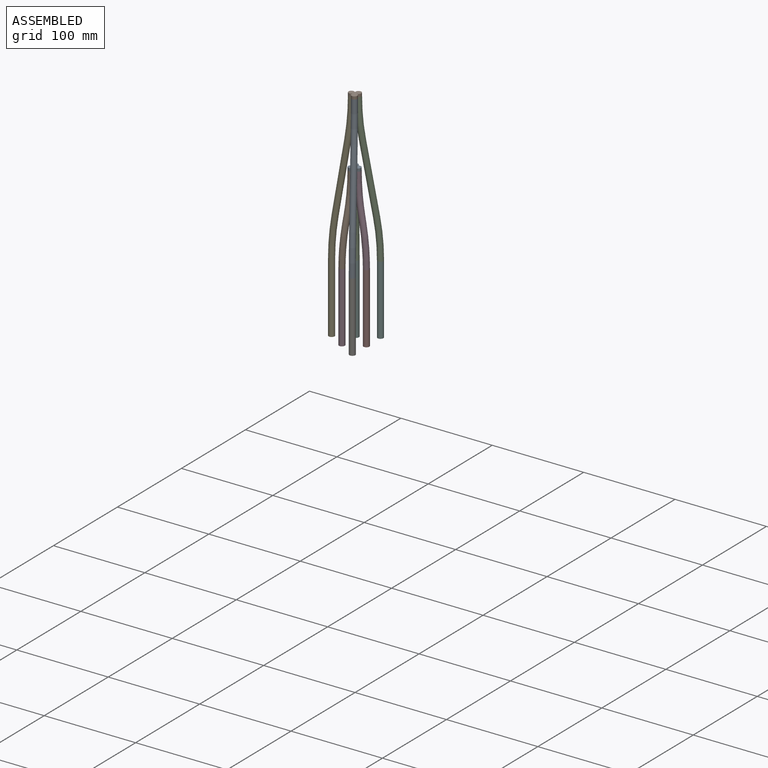
[diagram: assembled view]
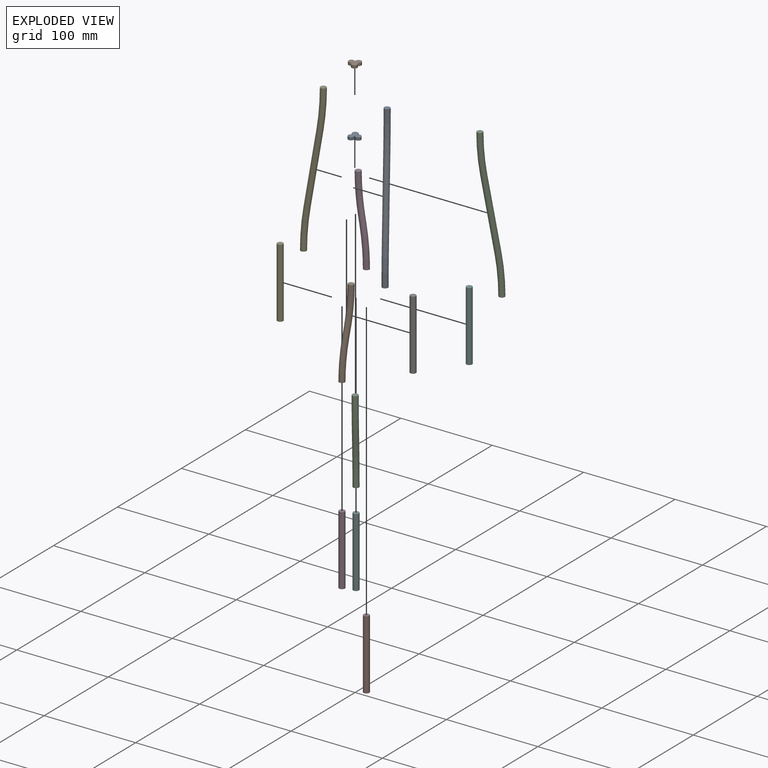
[diagram: exploded view]
GUIDED TOUR — MATED ASSEMBLY (Onshape document 88a224a0851aa47584ca5016, AutoMate assembly 88a224a0851aa47584ca5016_c55f36aa1278669426fe8781_8108f294a203a24cbaa4ed8d_default)

This assembly has 14 components, labeled P0..P13 below (a component is one placed occurrence of a part; the same part can appear more than once), held together by 20 mates. A mate is a constraint between two components; its type names the relative motion it leaves free:
  CYLINDRICAL — leaves both rotation about and translation along the listed axis free,
  PLANAR — leaves sliding in the plane through the listed point (normal = the listed direction) and rotation about that normal free.
Axis/direction vectors are unit vectors and 'through' points are millimeter coordinates, both in the assembly's world frame.

MATES
  1. PLANAR "Planar 5": P2 <-> P0, direction (0.000, 0.000, 1.000) through (-2.00, 3.08, 133.14) mm
  2. CYLINDRICAL "Cylindrical 8": P0 <-> P11, axis (0.000, 0.000, -1.000) through (3.50, -0.10, 133.14) mm
  3. PLANAR "Planar 6": P11 <-> P0, direction (0.000, 0.000, 1.000) through (3.50, -0.10, 133.14) mm
  4. CYLINDRICAL "Cylindrical 2": P12 <-> P4, axis (0.000, 0.000, -1.000) through (-25.57, -0.10, 38.10) mm
  5. CYLINDRICAL "Cylindrical 6": P9 <-> P4, axis (0.000, 0.000, -1.000) through (-3.83, -0.10, 205.16) mm
  6. CYLINDRICAL "Cylindrical 10": P2 <-> P5, axis (0.000, 0.000, -1.000) through (-6.52, 10.90, 38.10) mm
  7. PLANAR "Planar 3": P8 <-> P6, direction (0.000, 0.000, -1.000) through (12.53, -22.09, 38.10) mm
  8. PLANAR "Planar 4": P9 <-> P8, direction (0.000, 0.000, -1.000) through (1.66, -3.27, 205.16) mm
  9. PLANAR "Planar 7": P1 <-> P0, direction (0.000, 0.000, 1.000) through (-2.00, -3.27, 133.14) mm
  10. CYLINDRICAL "Cylindrical 12": P3 <-> P1, axis (0.000, 0.000, 1.000) through (-6.52, -11.10, 38.10) mm
  11. CYLINDRICAL "Cylindrical 7": P0 <-> P2, axis (0.000, 0.000, -1.000) through (-2.00, 3.08, 133.14) mm
  12. CYLINDRICAL "Cylindrical 3": P10 <-> P13, axis (0.000, 0.000, -1.000) through (12.53, 21.90, 38.10) mm
  13. CYLINDRICAL "Cylindrical 9": P0 <-> P1, axis (0.000, 0.000, -1.000) through (-2.00, -3.27, 133.14) mm
  14. CYLINDRICAL "Cylindrical 5": P9 <-> P10, axis (0.000, 0.000, -1.000) through (1.66, 3.08, 205.16) mm
  15. PLANAR "Planar 8": P2 <-> P5, direction (0.000, 0.000, -1.000) through (-6.52, 10.90, 38.10) mm
  16. CYLINDRICAL "Cylindrical 4": P9 <-> P8, axis (0.000, 0.000, -1.000) through (1.66, -3.27, 205.16) mm
  17. CYLINDRICAL "Cylindrical 1": P8 <-> P6, axis (0.000, 0.000, -1.000) through (12.53, -22.09, 38.10) mm
  18. PLANAR "Planar 2": P4 <-> P12, direction (0.000, 0.000, -1.000) through (-25.57, -0.10, 38.10) mm
  19. CYLINDRICAL "Cylindrical 11": P11 <-> P7, axis (0.000, 0.000, -1.000) through (12.53, -0.10, 38.10) mm
  20. PLANAR "Planar 1": P10 <-> P13, direction (0.000, 0.000, -1.000) through (12.53, 21.90, 38.10) mm

ASSEMBLY ORDER
  1. P11 — the base component [order verified]
  2. P0 [order verified]
  3. P8 [order verified]
  4. P10 [order verified]
  5. P1 [order verified]
  6. P2 [order verified]
  7. P3 [order verified]
  8. P5 [order verified]
  9. P4 [order verified]
  10. P7 [order verified]
  11. P6 [order verified]
  12. P13 [order verified]
  13. P12 [order verified]
  14. P9 [order verified]
Order-tag legend:
  [order verified] — this step's position reverses a verified removal order: the component was checked to insert without passing through the ones already placed.

Of the 14 components, 2 carry the full construction recipe — the FeatureScript program that regenerates the part's solid from scratch; the rest are supplied as boundary geometry only.
Because this assembly has more than 12 components, the tour below covers the 12 most significant ones individually (every recipe-attached component first, then the largest by part volume), in assembly order; the remaining 2 are summarized together in a grouped section at the end.
Each toured component is shown spotlighted twice — in the assembled view, then in the exploded view, where a leader line traces a displaced component back to its assembled socket (saturated green if recipe-attached, orange if geometry-only; every other component desaturated gray) — followed by its recipe or geometry summary and the mates that hold it.
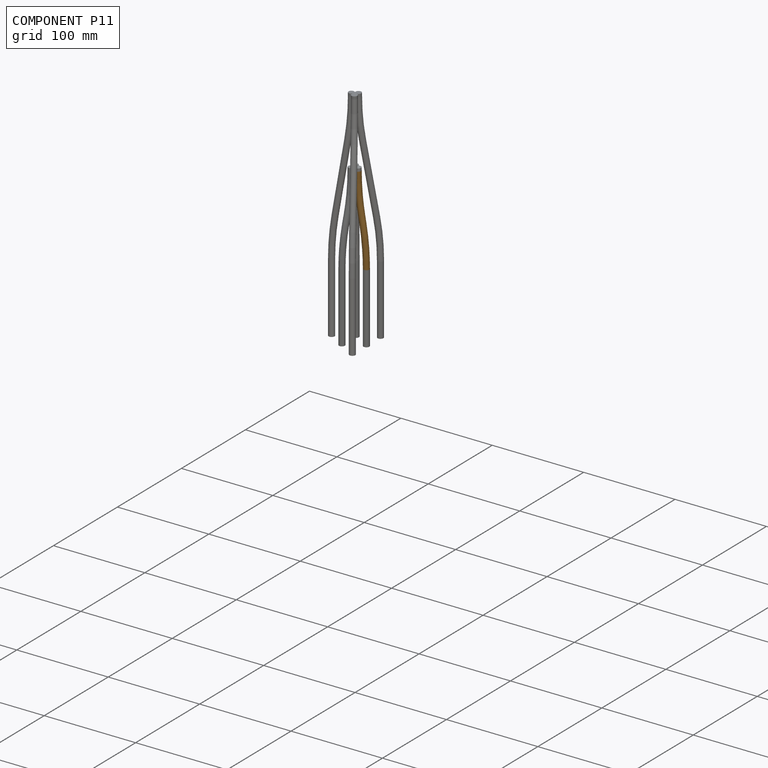
[diagram: component P11 — assembled]
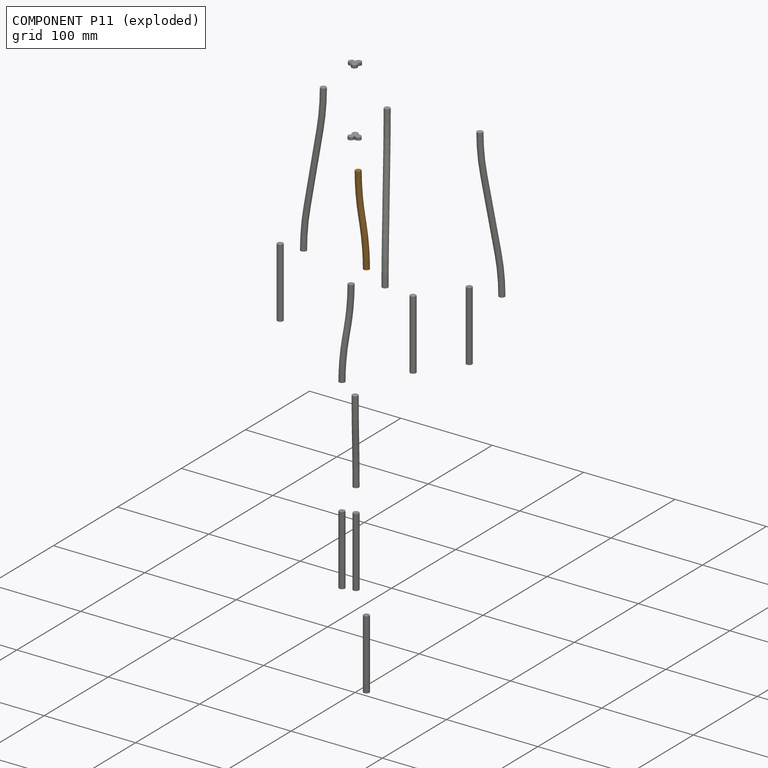
[diagram: component P11 — exploded]
COMPONENT P11 — geometry summary (no construction recipe available for this part):
  bounding box: 95.0 x 15.3 x 11.3 mm
  B-rep topology: 1 solid, 5 faces, 14 edges
  volume: 3028 mm^3 (18% of its bounding box)
Held by: CYLINDRICAL mate "Cylindrical 8" to P0; PLANAR mate "Planar 6" to P0; CYLINDRICAL mate "Cylindrical 11" to P7.
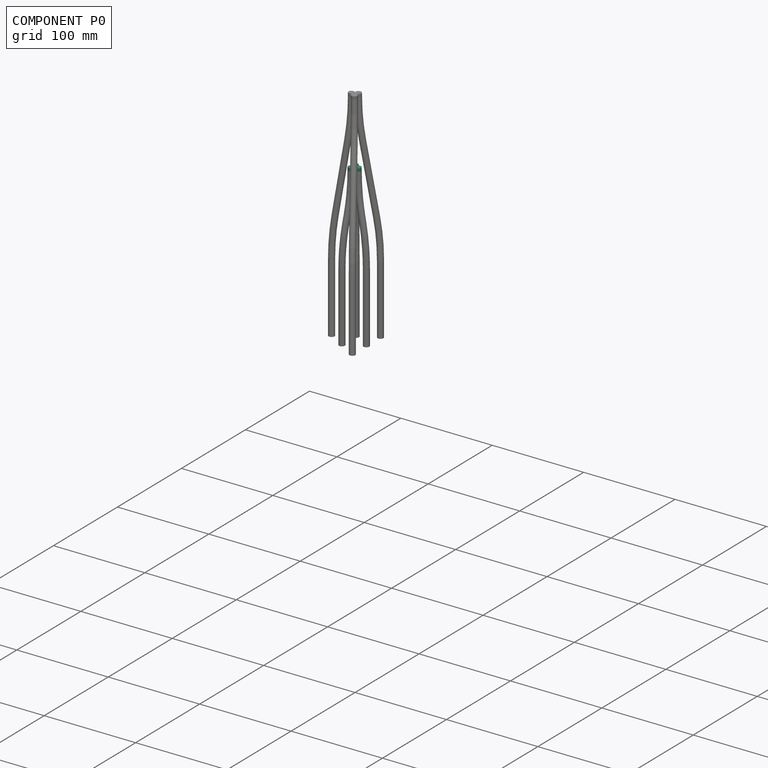
[diagram: component P0 — assembled]
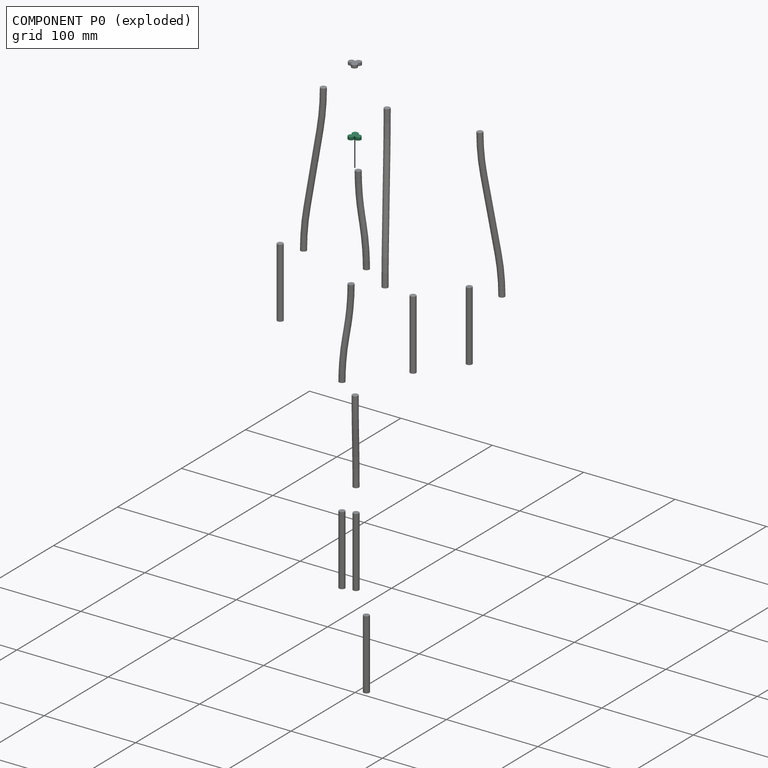
[diagram: component P0 — exploded]
COMPONENT P0 — recipe-attached (CADFS 00508825, mesh-verified: the recipe's output STEP matches this component's geometry to below the mesh-comparison resolution (tessellation chordal tolerance ~0.0265 mm)).
Held by: PLANAR mate "Planar 5" to P2; CYLINDRICAL mate "Cylindrical 8" to P11; PLANAR mate "Planar 6" to P11; PLANAR mate "Planar 7" to P1; CYLINDRICAL mate "Cylindrical 7" to P2; CYLINDRICAL mate "Cylindrical 9" to P1.
Construction recipe (FeatureScript — the CAD program that rebuilds this solid; sketch coordinates are in the units given by the * unit suffixes, e.g. mm):

FeatureScript 2625;
import(path : "onshape/std/geometry.fs", version : "2625.0");
import(path : "onshape/std/common.fs", version : "2625.0");
const mm = millimeter;
const VERTEX = EntityType.VERTEX;
const EDGE = EntityType.EDGE;
const FACE = EntityType.FACE;
const BODY = EntityType.BODY;
function v(x, y){return vector(x, y);}
function OD(order){return orderDisambiguation(order);}
function OSD(set){return originalSetDisambiguation(set);}
function TD(topology){return topologyDisambiguation(topology);}
function TDD(query){return trueDependencyDisambiguation(query);}
function sQuery(a, b, c) {return sketchEntityQuery(a, b, c);}

annotation { "Feature Type Name" : "Feature", "Feature Type Description" : "" }
export const myFeature = defineFeature(function(context is Context, id is Id, definition is map)
    precondition{}
    {
        {
            var Q0;
            Q0=qCreatedBy(makeId("Right.planeOp"),FACE);
            var sketch = newSketch(context, id + "F0", { "sketchPlane" : qUnion([Q0])});
            skLineSegment(sketch, "E0", {"start": v(0, 0) * mm, "end": v(0, 179.6) * mm});
            skLineSegment(sketch, "E1", {"start": v(0, 179.6) * mm, "end": v(-169.33, -59.87) * mm});
            skLineSegment(sketch, "E2", {"start": v(-169.33, -59.87) * mm, "end": v(0, 0) * mm});
            skLineSegment(sketch, "E3", {"start": v(-169.33, -59.87) * mm, "end": v(84.67, -59.87) * mm, "construction": true});
            skLineSegment(sketch, "E4", {"start": v(0, 179.6) * mm, "end": v(84.67, -59.87) * mm, "construction": true});
            skLineSegment(sketch, "E5", {"start": v(0, 0) * mm, "end": v(84.67, -59.87) * mm, "construction": true});
            skLineSegment(sketch, "E6", {"start": v(0, 0) * mm, "end": v(0, -59.87) * mm, "construction": true});
            skCircle(sketch, "E7", {"center": v(-84.67, -59.87) * mm, "radius": 84.67 * mm, "construction": true});
            skCircle(sketch, "E8", {"center": v(0, -59.87) * mm, "radius": 84.67 * mm, "construction": true});
            skArc(sketch, "E9", {"start": v(-169.33, -59.87) * mm, "mid": v(-46.6, 32.96) * mm, "end": v(0, 179.6) * mm, "construction": true});
            skLineSegment(sketch, "E10", {"start": v(0, 179.6) * mm, "end": v(-254, 179.6) * mm, "construction": true});
            skLineSegment(sketch, "E11", {"start": v(-169.33, -59.87) * mm, "end": v(-254, 179.6) * mm, "construction": true});
            skSolve(sketch);
        }
        {
            var Q0;
            Q0=qCreatedBy(makeId("Right.planeOp"),FACE);
            var sketch = newSketch(context, id + "F1", { "sketchPlane" : qUnion([Q0])});
            skPoint(sketch, "E12.0", {"position": v(-254, 179.6) * mm});
            skPoint(sketch, "E13.0", {"position": v(-169.33, -59.87) * mm});
            skPoint(sketch, "E14.0", {"position": v(0, 0) * mm});
            skArc(sketch, "E15", {"start": v(-169.33, -59.87) * mm, "mid": v(-46.6, 32.96) * mm, "end": v(0, 179.6) * mm, "construction": true});
            skLineSegment(sketch, "E16", {"start": v(0, 179.6) * mm, "end": v(-254, 179.6) * mm, "construction": true});
            skLineSegment(sketch, "E17", {"start": v(-169.33, -59.87) * mm, "end": v(-254, 179.6) * mm, "construction": true});
            skCircle(sketch, "E18", {"center": v(-3.67, 0) * mm, "radius": 3.18 * mm, "construction": true});
            skCircle(sketch, "E19.1.0", {"center": v(1.83, -3.18) * mm, "radius": 3.18 * mm, "construction": true});
            skCircle(sketch, "E19.2.0", {"center": v(1.83, 3.18) * mm, "radius": 3.18 * mm, "construction": true});
            skLineSegment(sketch, "E20", {"start": v(1.83, 3.18) * mm, "end": v(1.83, -3.18) * mm, "construction": true});
            skLineSegment(sketch, "E21", {"start": v(-3.67, 0) * mm, "end": v(1.83, 0) * mm, "construction": true});
            skLineSegment(sketch, "E22", {"start": v(-3.67, 0) * mm, "end": v(-12.7, 0) * mm, "construction": true});
            skCircle(sketch, "E23", {"center": v(-12.7, 0) * mm, "radius": 3.18 * mm, "construction": true});
            skCircle(sketch, "E24.1.0", {"center": v(6.35, -11) * mm, "radius": 3.18 * mm, "construction": true});
            skCircle(sketch, "E24.2.0", {"center": v(6.35, 11) * mm, "radius": 3.18 * mm, "construction": true});
            skLineSegment(sketch, "E25", {"start": v(6.35, 11) * mm, "end": v(6.35, -11) * mm, "construction": true});
            skLineSegment(sketch, "E26", {"start": v(1.83, 0) * mm, "end": v(6.35, 0) * mm, "construction": true});
            skArc(sketch, "E27.0", {"start": v(-7.53, 135.81) * mm, "mid": v(-4.63, 157.62) * mm, "end": v(-3.67, 179.6) * mm});
            skLineSegment(sketch, "E28", {"start": v(-254, 179.6) * mm, "end": v(-32.17, 98.2) * mm, "construction": true});
            skLineSegment(sketch, "E29", {"start": v(-254, 179.6) * mm, "end": v(-7.53, 135.81) * mm, "construction": true});
            skLineSegment(sketch, "E30", {"start": v(-254, 179.6) * mm, "end": v(-49.83, 60.65) * mm, "construction": true});
            skLineSegment(sketch, "E31", {"start": v(-254, 179.6) * mm, "end": v(-73.8, 26.77) * mm, "construction": true});
            skArc(sketch, "E32", {"start": v(-175.24, -43.17) * mm, "mid": v(-61.07, 43.18) * mm, "end": v(-17.7, 179.6) * mm, "construction": true});
            skLineSegment(sketch, "E33", {"start": v(-73.8, 26.77) * mm, "end": v(-49.83, 60.65) * mm, "construction": true});
            skLineSegment(sketch, "E34", {"start": v(-49.83, 60.65) * mm, "end": v(-32.17, 98.2) * mm, "construction": true});
            skLineSegment(sketch, "E35", {"start": v(-32.17, 98.2) * mm, "end": v(-21.35, 138.27) * mm, "construction": true});
            skLineSegment(sketch, "E36", {"start": v(-21.35, 138.27) * mm, "end": v(-17.7, 179.6) * mm, "construction": true});
            skLineSegment(sketch, "E37", {"start": v(-254, 179.6) * mm, "end": v(-103.31, -2.4) * mm, "construction": true});
            skLineSegment(sketch, "E38", {"start": v(-73.8, 26.77) * mm, "end": v(-103.31, -2.4) * mm, "construction": true});
            skLineSegment(sketch, "E39", {"start": v(-254, 179.6) * mm, "end": v(-137.48, -25.96) * mm, "construction": true});
            skLineSegment(sketch, "E40", {"start": v(-175.24, -43.17) * mm, "end": v(-137.48, -25.96) * mm, "construction": true});
            skLineSegment(sketch, "E41", {"start": v(-103.31, -2.4) * mm, "end": v(-137.48, -25.96) * mm, "construction": true});
            skSolve(sketch);
        }
        {
            var Q0;
            Q0=qCreatedBy(makeId("Right.planeOp"),FACE);
            var sketch = newSketch(context, id + "F2", { "sketchPlane" : qUnion([Q0])});
            skPoint(sketch, "E42.0", {"position": v(-3.67, 179.6) * mm});
            skPoint(sketch, "E42.1", {"position": v(-7.53, 135.81) * mm});
            skPoint(sketch, "E42.2", {"position": v(-254, 179.6) * mm});
            skPoint(sketch, "E42.3", {"position": v(0, 0) * mm});
            skPoint(sketch, "E42.4", {"position": v(-12.7, 0) * mm});
            skArc(sketch, "E43", {"start": v(-7.53, 135.81) * mm, "mid": v(-4.63, 157.62) * mm, "end": v(-3.67, 179.6) * mm});
            skLineSegment(sketch, "E44", {"start": v(-7.53, 135.81) * mm, "end": v(-8.84, 128.42) * mm});
            skLineSegment(sketch, "E45", {"start": v(-8.18, 132.12) * mm, "end": v(-8.18, 84.63) * mm, "construction": true});
            skArc(sketch, "E46.1.0", {"start": v(-8.84, 128.42) * mm, "mid": v(-11.73, 106.61) * mm, "end": v(-12.7, 84.63) * mm});
            skPoint(sketch, "E46.center", {"position": v(-8.18, 132.12) * mm});
            skSolve(sketch);
        }
        {
            var Q0;
            Q0=qCreatedBy(makeId("Right.planeOp"),FACE);
            var sketch = newSketch(context, id + "F3", { "sketchPlane" : qUnion([Q0])});
            skPoint(sketch, "E47.0", {"position": v(0, 0) * mm});
            skPoint(sketch, "E48.0", {"position": v(-3.67, 179.6) * mm});
            skPoint(sketch, "E48.1", {"position": v(-7.53, 135.81) * mm});
            skPoint(sketch, "E48.2", {"position": v(-254, 179.6) * mm});
            skArc(sketch, "E49", {"start": v(-7.53, 135.81) * mm, "mid": v(-4.63, 157.62) * mm, "end": v(-3.67, 179.6) * mm});
            skLineSegment(sketch, "E50", {"start": v(-7.53, 135.81) * mm, "end": v(-21.54, 56.95) * mm});
            skLineSegment(sketch, "E51", {"start": v(-14.53, 96.38) * mm, "end": v(-14.53, 13.15) * mm, "construction": true});
            skArc(sketch, "E52.1.0", {"start": v(-21.54, 56.95) * mm, "mid": v(-24.43, 35.14) * mm, "end": v(-25.4, 13.15) * mm});
            skPoint(sketch, "E52.center", {"position": v(-14.53, 96.38) * mm});
            skLineSegment(sketch, "E53", {"start": v(0, 0) * mm, "end": v(-25.4, 0) * mm, "construction": true});
            skSolve(sketch);
        }
        {
            var Q0;
            Q0=sQuery(id+"F0.wireOp",VERTEX,"E8.center");
            var Q1;
            Q1=qCreatedBy(makeId("Top.planeOp"),FACE);
            cPlane(context, id + "F4", {"entities" : qUnion([Q0, Q1]), "cplaneType" : CPlaneType.PLANE_POINT, "offset" : 25.4 * mm, "width" : 152.4 * mm, "height" : 152.4 * mm});
        }
        {
            var Q0;
            Q0=qCreatedBy(id+"F4.planeOp",FACE);
            var sketch = newSketch(context, id + "F5", { "sketchPlane" : qUnion([Q0])});
            skCircle(sketch, "E54.cCircle", {"center": v(0, 0) * mm, "radius": 169.33 * mm, "construction": true});
            skLineSegment(sketch, "E54.0", {"start": v(0, -169.33) * mm, "end": v(-146.65, 84.67) * mm, "construction": true});
            skLineSegment(sketch, "E54.1", {"start": v(-146.65, 84.67) * mm, "end": v(146.65, 84.67) * mm, "construction": true});
            skLineSegment(sketch, "E54.2", {"start": v(146.65, 84.67) * mm, "end": v(0, -169.33) * mm, "construction": true});
            skSolve(sketch);
        }
        {
            var Q0;
            Q0=sQuery(id+"F0.wireOp",VERTEX,"E6.start");
            var Q1;
            Q1=sQuery(id+"F5.wireOp",VERTEX,"E54.1.start");
            var Q2;
            Q2=sQuery(id+"F5.wireOp",VERTEX,"E54.2.start");
            cPlane(context, id + "F6", {"entities" : qUnion([Q0, Q1, Q2]), "cplaneType" : CPlaneType.THREE_POINT, "offset" : 25.4 * mm, "width" : 152.4 * mm, "height" : 152.4 * mm});
        }
        {
            var Q0;
            Q0=qCreatedBy(id+"F6.planeOp",FACE);
            var sketch = newSketch(context, id + "F7", { "sketchPlane" : qUnion([Q0])});
            skLineSegment(sketch, "E55", {"start": v(-146.65, 103.7) * mm, "end": v(0, 0) * mm});
            skLineSegment(sketch, "E56", {"start": v(0, 0) * mm, "end": v(146.65, 103.7) * mm});
            skLineSegment(sketch, "E57", {"start": v(146.65, 103.7) * mm, "end": v(-146.65, 103.7) * mm});
            skLineSegment(sketch, "E58", {"start": v(0, 103.7) * mm, "end": v(0, 0) * mm});
            skSolve(sketch);
        }
        {
            var Q0;
            Q0=sQuery(id+"F7.wireOp",VERTEX,"E57.end");
            var Q1;
            Q1=sQuery(id+"F7.wireOp",VERTEX,"E57.start");
            var Q2;
            Q2=sQuery(id+"F0.wireOp",VERTEX,"E4.start");
            cPlane(context, id + "F8", {"entities" : qUnion([Q0, Q1, Q2]), "cplaneType" : CPlaneType.THREE_POINT, "offset" : 25.4 * mm, "width" : 152.4 * mm, "height" : 152.4 * mm});
        }
        {
            var Q0;
            Q0=sQuery(id+"F1.wireOp",VERTEX,"E27.0.end");
            var Q1;
            Q1=qCreatedBy(makeId("Top.planeOp"),FACE);
            cPlane(context, id + "F9", {"entities" : qUnion([Q0, Q1]), "cplaneType" : CPlaneType.PLANE_POINT, "offset" : 25.4 * mm, "width" : 152.4 * mm, "height" : 152.4 * mm});
        }
        {
            var Q0;
            Q0=qCreatedBy(id+"F9.planeOp",FACE);
            var sketch = newSketch(context, id + "F10", { "sketchPlane" : qUnion([Q0])});
            skPoint(sketch, "E59.0", {"position": v(0, -3.67) * mm});
            skCircle(sketch, "E60", {"center": v(0, -3.67) * mm, "radius": 3.18 * mm});
            skCircle(sketch, "E61.1.0", {"center": v(3.18, 1.83) * mm, "radius": 3.18 * mm});
            skCircle(sketch, "E61.2.0", {"center": v(-3.18, 1.83) * mm, "radius": 3.18 * mm});
            skPoint(sketch, "E61.center", {"position": v(0, 0) * mm});
            skSolve(sketch);
        }
        {
            var Q0;
            Q0=qCreatedBy(makeId("Top.planeOp"),FACE);
            var sketch = newSketch(context, id + "F11", { "sketchPlane" : qUnion([Q0])});
            skCircle(sketch, "E62", {"center": v(-6.35, -11) * mm, "radius": 3.18 * mm});
            skCircle(sketch, "E63", {"center": v(-25.4, 0) * mm, "radius": 3.18 * mm});
            skCircle(sketch, "E64.1.0", {"center": v(12.7, 0) * mm, "radius": 3.18 * mm});
            skCircle(sketch, "E64.2.0", {"center": v(-6.35, 11) * mm, "radius": 3.18 * mm});
            skPoint(sketch, "E64.center", {"position": v(0, 0) * mm});
            skCircle(sketch, "E65.1.0", {"center": v(12.7, -22) * mm, "radius": 3.18 * mm});
            skCircle(sketch, "E65.2.0", {"center": v(12.7, 22) * mm, "radius": 3.18 * mm});
            skLineSegment(sketch, "E66", {"start": v(0, 0) * mm, "end": v(12.7, 0) * mm});
            skLineSegment(sketch, "E67", {"start": v(0, 0) * mm, "end": v(-25.4, 0) * mm});
            skSolve(sketch);
        }
        {
            var Q0;
            Q0=qSketchRegion(id+"F10",true);
            extrude(context, id + "F12", {"entities" : qUnion([Q0]), "depth" : 3.17 * mm, "offsetDistance" : 25.4 * mm});
        }
    });
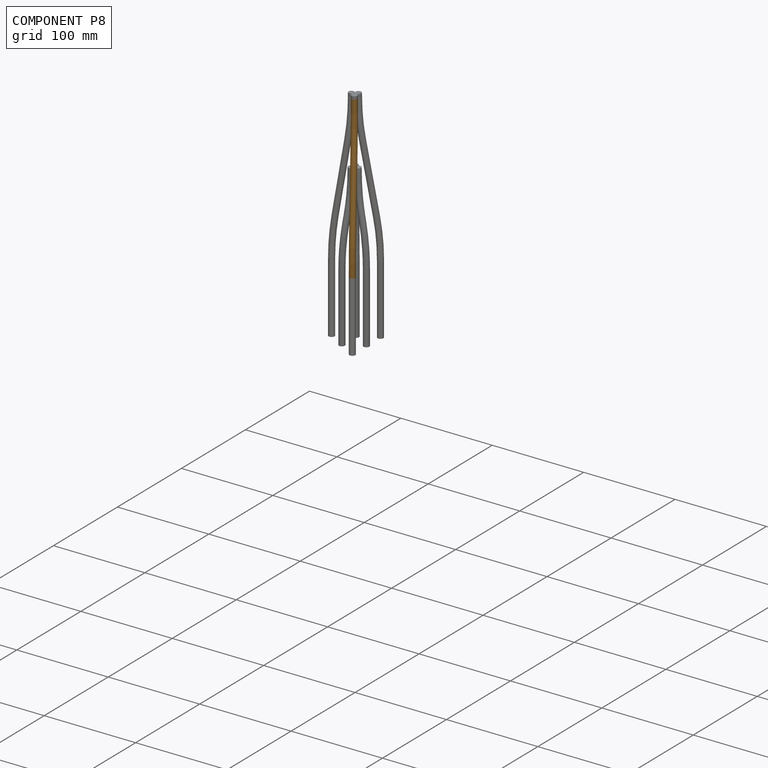
[diagram: component P8 — assembled]
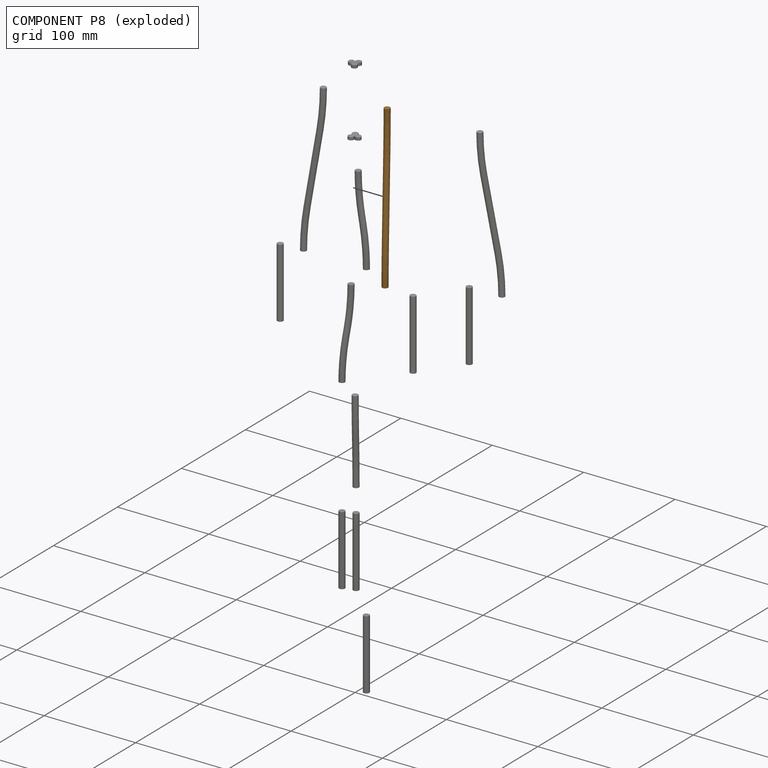
[diagram: component P8 — exploded]
COMPONENT P8 — geometry summary (no construction recipe available for this part):
  bounding box: 167.1 x 30.0 x 6.4 mm
  B-rep topology: 1 solid, 5 faces, 14 edges
  volume: 5344 mm^3 (17% of its bounding box)
  symmetry: 2-fold rotationally symmetric about the x axis; mirror-symmetric across its x mid-plane
Held by: PLANAR mate "Planar 3" to P6; PLANAR mate "Planar 4" to P9; CYLINDRICAL mate "Cylindrical 4" to P9; CYLINDRICAL mate "Cylindrical 1" to P6.
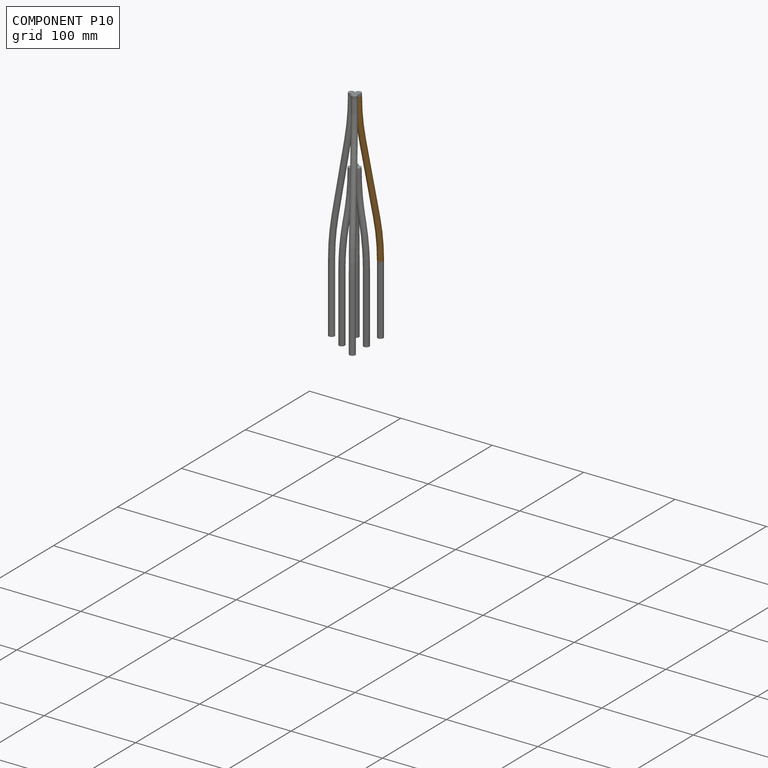
[diagram: component P10 — assembled]
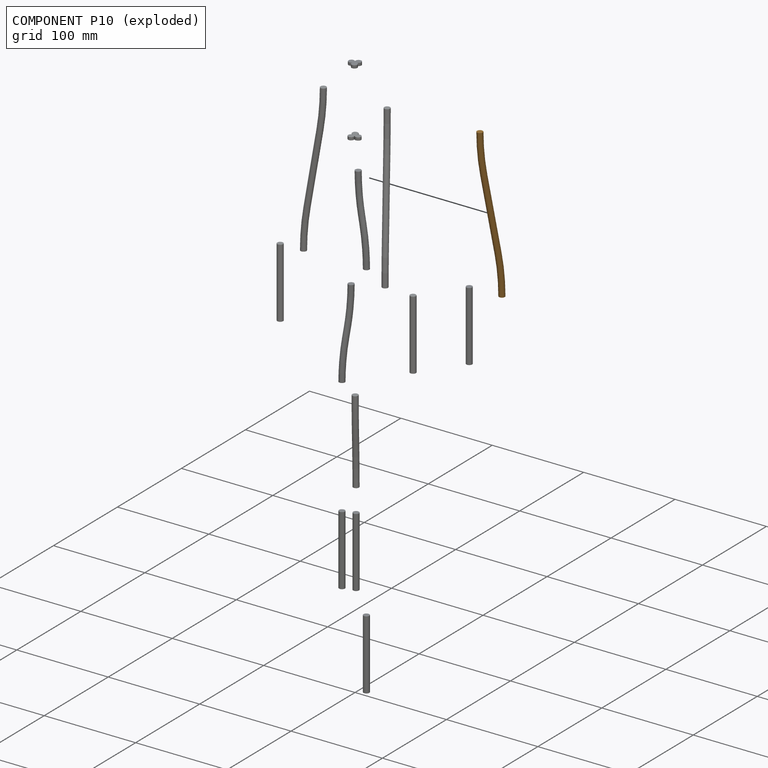
[diagram: component P10 — exploded]
COMPONENT P10 — geometry summary (no construction recipe available for this part):
  bounding box: 167.1 x 26.3 x 17.6 mm
  B-rep topology: 1 solid, 5 faces, 14 edges
  volume: 5344 mm^3 (7% of its bounding box)
Held by: CYLINDRICAL mate "Cylindrical 3" to P13; CYLINDRICAL mate "Cylindrical 5" to P9; PLANAR mate "Planar 1" to P13.
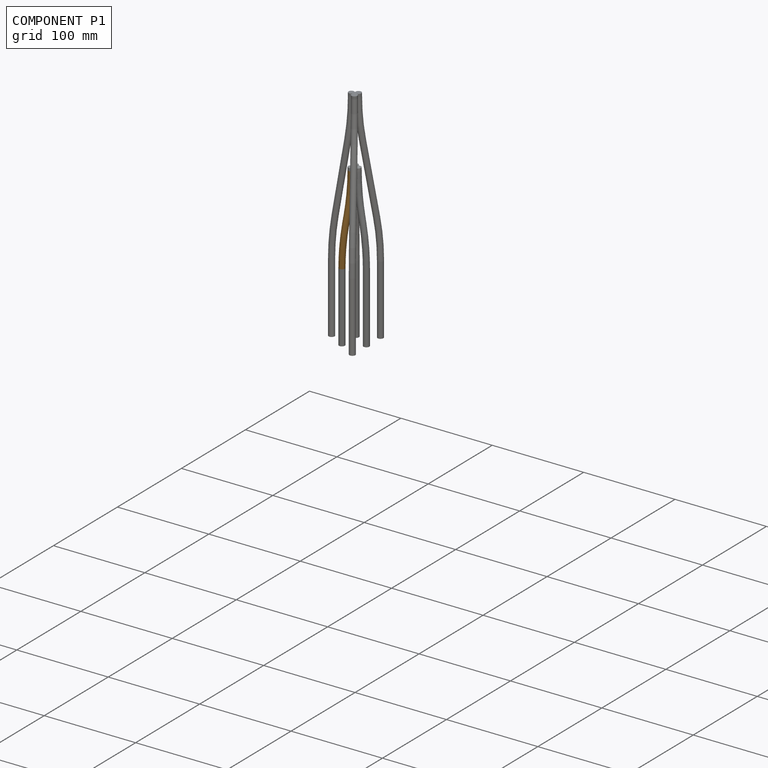
[diagram: component P1 — assembled]
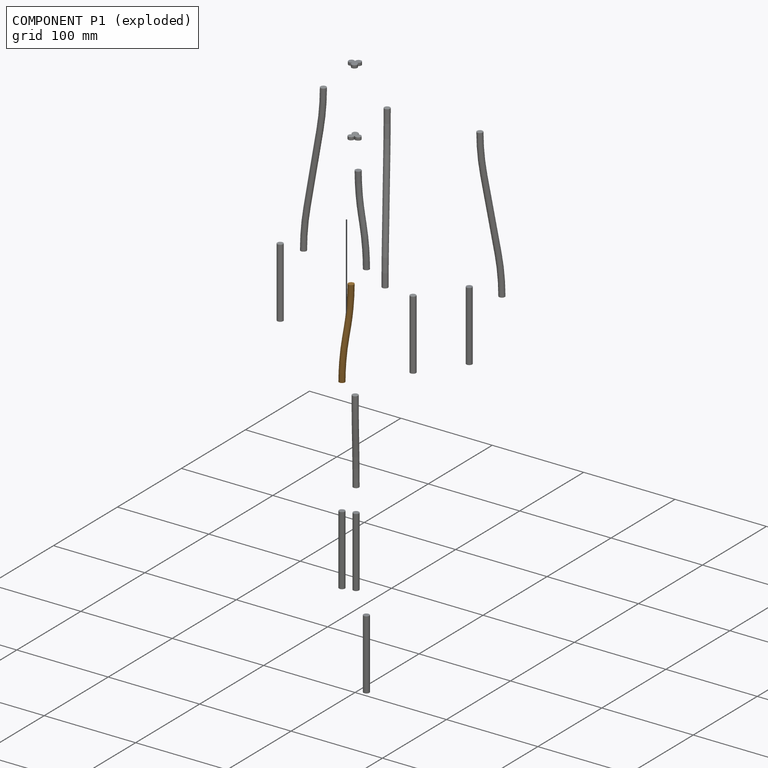
[diagram: component P1 — exploded]
COMPONENT P1 — geometry summary (no construction recipe available for this part):
  bounding box: 95.0 x 17.3 x 6.4 mm
  B-rep topology: 1 solid, 5 faces, 14 edges
  volume: 3028 mm^3 (29% of its bounding box)
  symmetry: 2-fold rotationally symmetric about the x axis; mirror-symmetric across its x mid-plane
Held by: PLANAR mate "Planar 7" to P0; CYLINDRICAL mate "Cylindrical 12" to P3; CYLINDRICAL mate "Cylindrical 9" to P0.
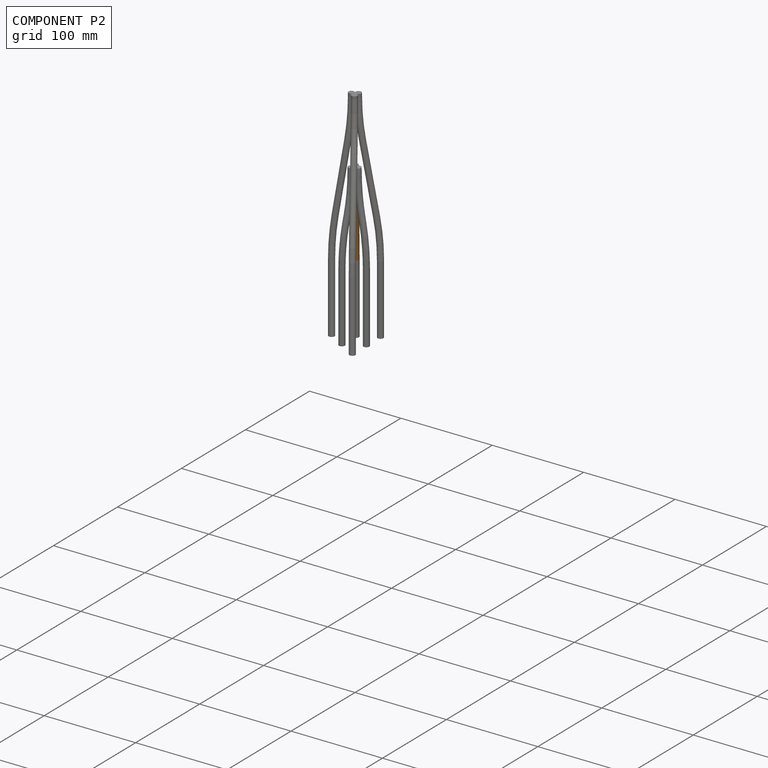
[diagram: component P2 — assembled]
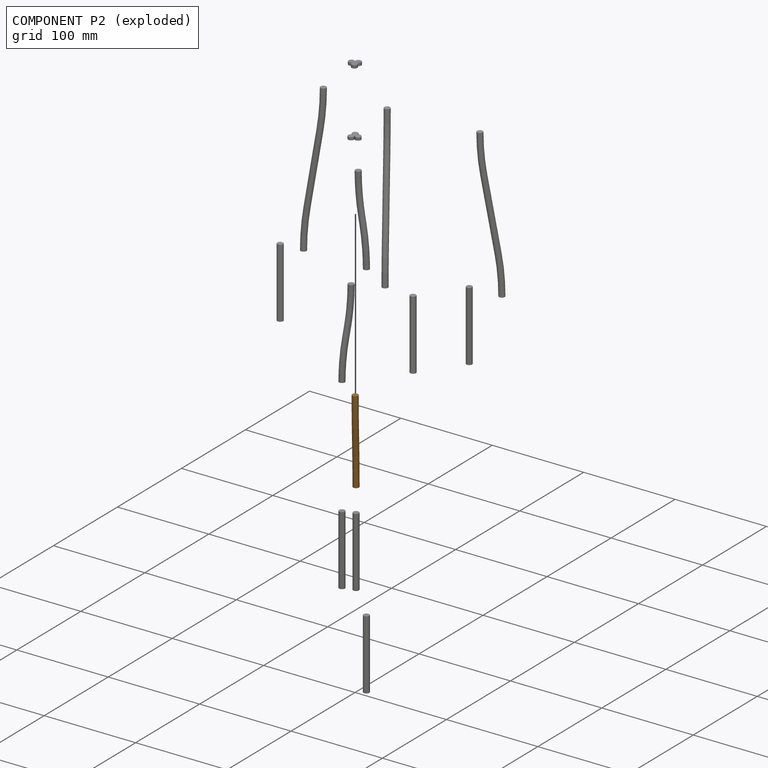
[diagram: component P2 — exploded]
COMPONENT P2 — geometry summary (no construction recipe available for this part):
  bounding box: 95.0 x 15.3 x 11.3 mm
  B-rep topology: 1 solid, 5 faces, 14 edges
  volume: 3028 mm^3 (18% of its bounding box)
Held by: PLANAR mate "Planar 5" to P0; CYLINDRICAL mate "Cylindrical 10" to P5; CYLINDRICAL mate "Cylindrical 7" to P0; PLANAR mate "Planar 8" to P5.
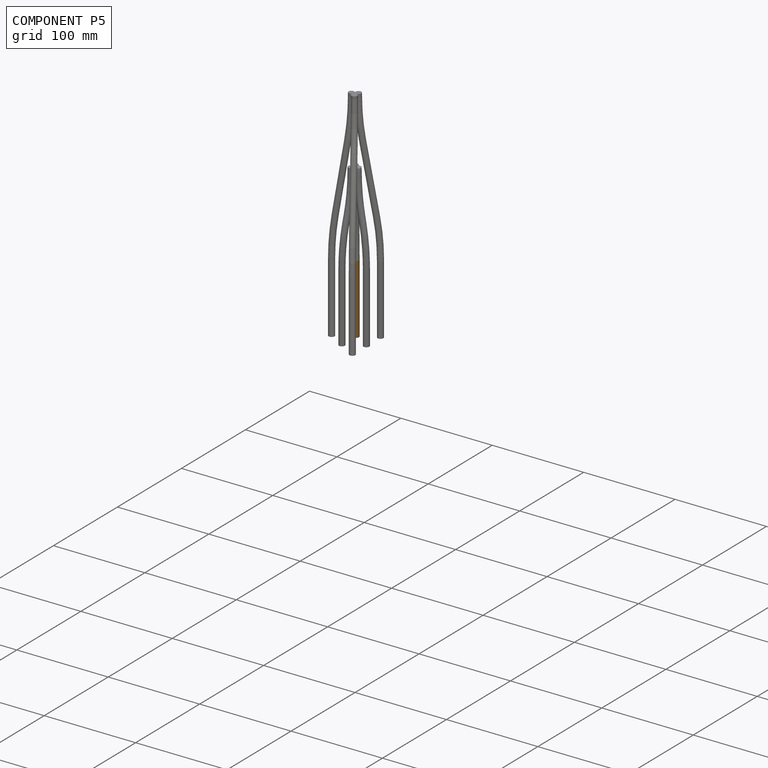
[diagram: component P5 — assembled]
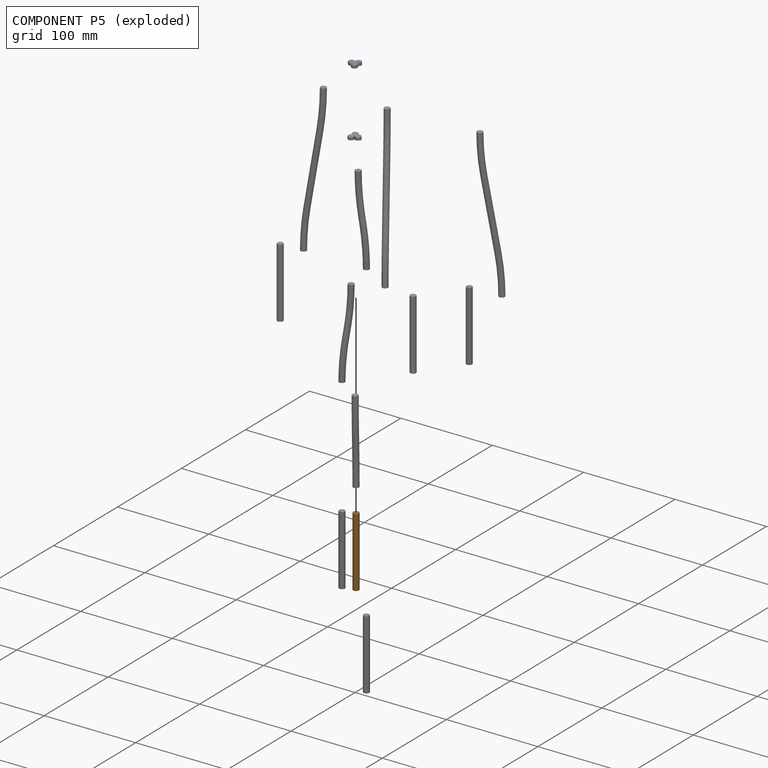
[diagram: component P5 — exploded]
COMPONENT P5 — geometry summary (no construction recipe available for this part):
  bounding box: 76.2 x 6.4 x 6.4 mm
  B-rep topology: 1 solid, 3 faces, 6 edges
  volume: 2413 mm^3 (79% of its bounding box)
  symmetry: 2-fold rotationally symmetric about the x axis; 2-fold rotationally symmetric about the y axis; revolution-symmetric about the z axis through its bounding-box center; mirror-symmetric across its x mid-plane, y mid-plane, z mid-plane
Held by: CYLINDRICAL mate "Cylindrical 10" to P2; PLANAR mate "Planar 8" to P2.
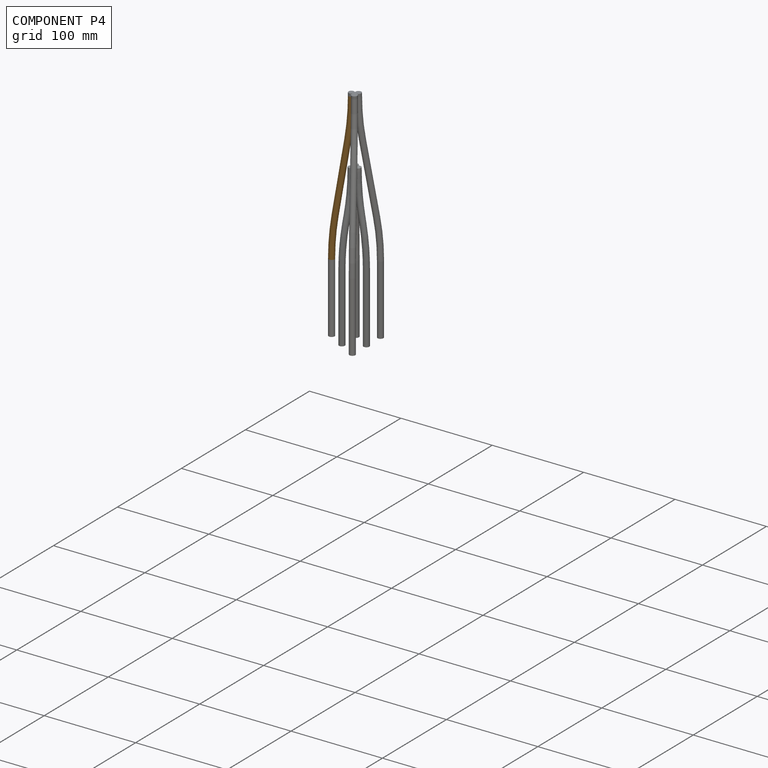
[diagram: component P4 — assembled]
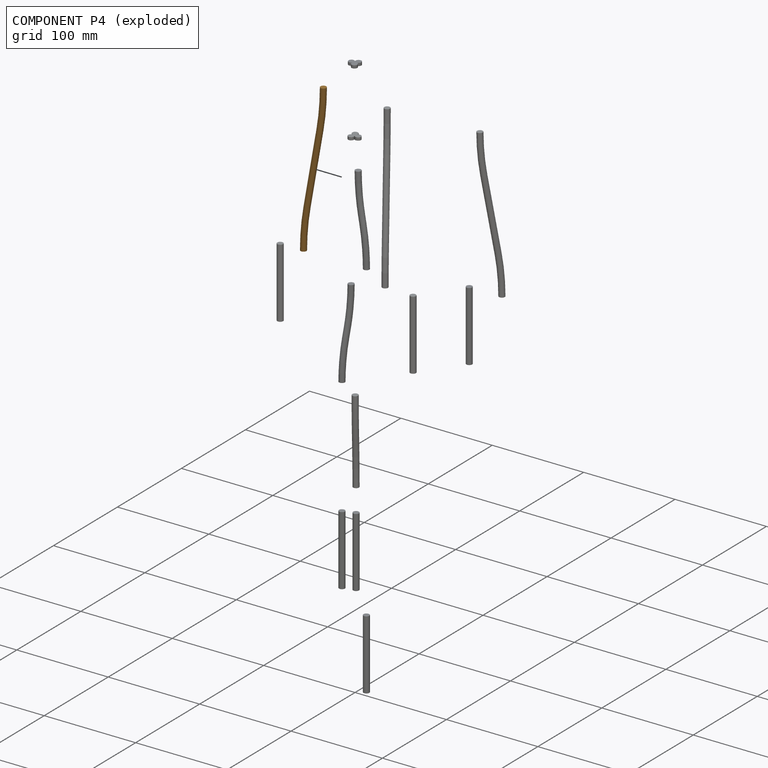
[diagram: component P4 — exploded]
COMPONENT P4 — geometry summary (no construction recipe available for this part):
  bounding box: 167.1 x 26.3 x 17.6 mm
  B-rep topology: 1 solid, 5 faces, 14 edges
  volume: 5344 mm^3 (7% of its bounding box)
Held by: CYLINDRICAL mate "Cylindrical 2" to P12; CYLINDRICAL mate "Cylindrical 6" to P9; PLANAR mate "Planar 2" to P12.
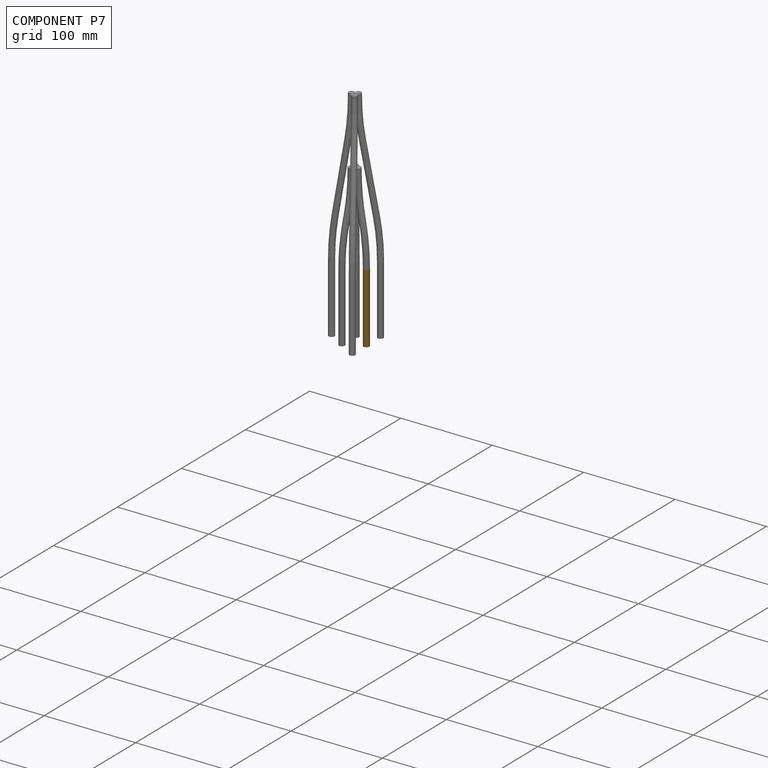
[diagram: component P7 — assembled]
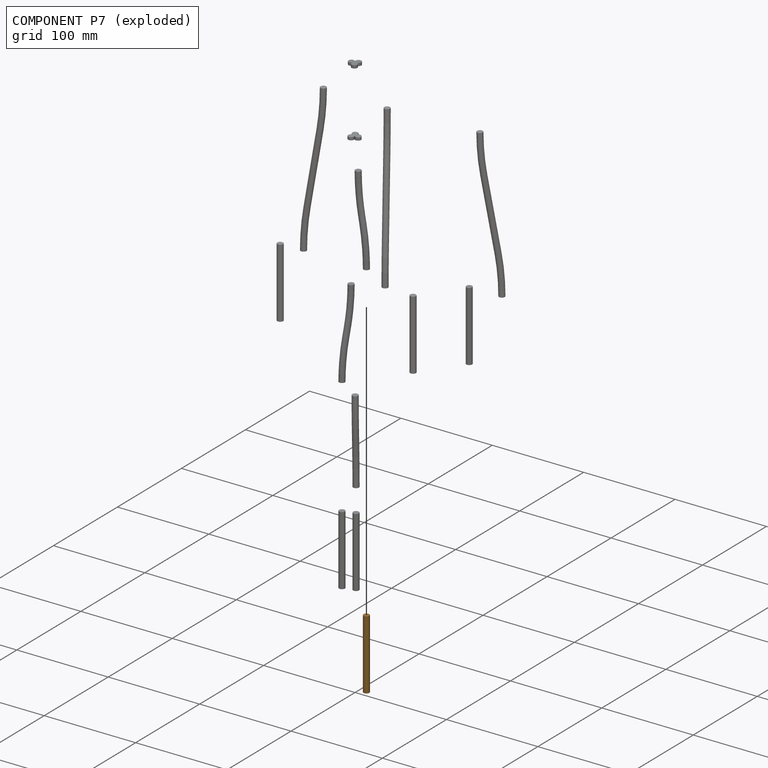
[diagram: component P7 — exploded]
COMPONENT P7 — geometry summary (no construction recipe available for this part):
  bounding box: 76.2 x 6.4 x 6.4 mm
  B-rep topology: 1 solid, 3 faces, 6 edges
  volume: 2413 mm^3 (79% of its bounding box)
  symmetry: 2-fold rotationally symmetric about the x axis; 2-fold rotationally symmetric about the y axis; revolution-symmetric about the z axis through its bounding-box center; mirror-symmetric across its x mid-plane, y mid-plane, z mid-plane
Held by: CYLINDRICAL mate "Cylindrical 11" to P11.
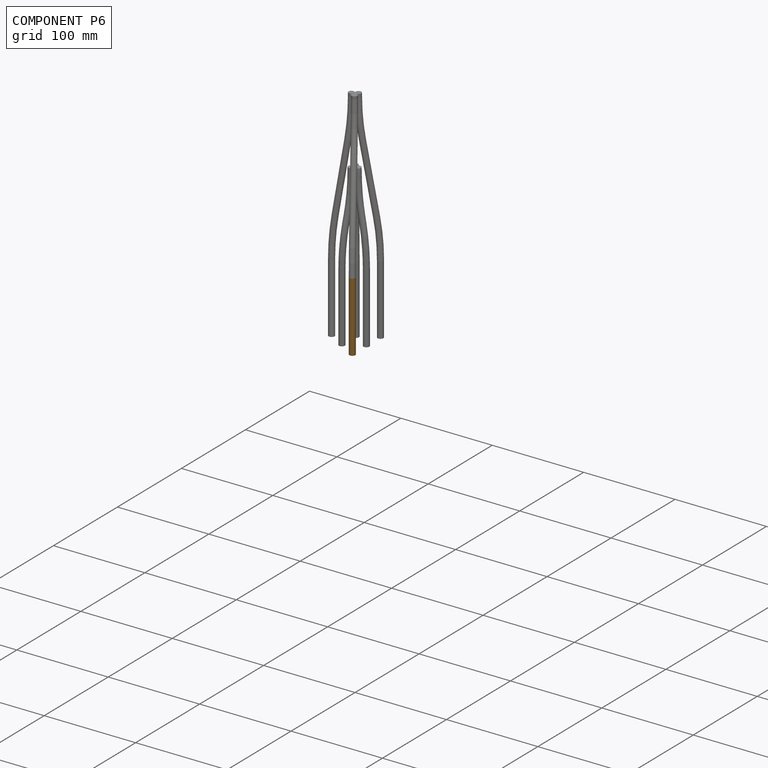
[diagram: component P6 — assembled]
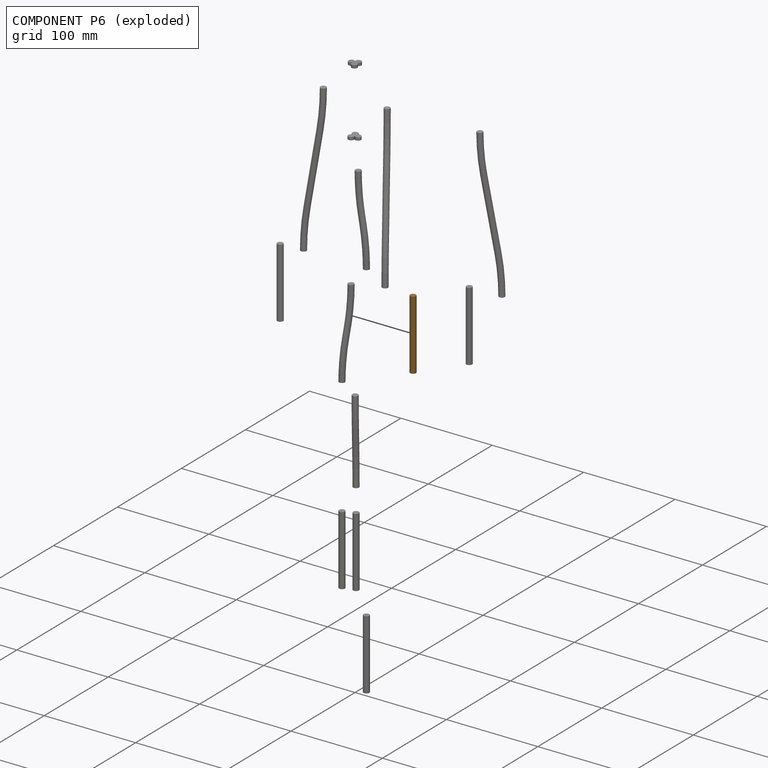
[diagram: component P6 — exploded]
COMPONENT P6 — geometry summary (no construction recipe available for this part):
  bounding box: 76.2 x 6.4 x 6.4 mm
  B-rep topology: 1 solid, 3 faces, 6 edges
  volume: 2413 mm^3 (79% of its bounding box)
  symmetry: 2-fold rotationally symmetric about the x axis; 2-fold rotationally symmetric about the y axis; revolution-symmetric about the z axis through its bounding-box center; mirror-symmetric across its x mid-plane, y mid-plane, z mid-plane
Held by: PLANAR mate "Planar 3" to P8; CYLINDRICAL mate "Cylindrical 1" to P8.
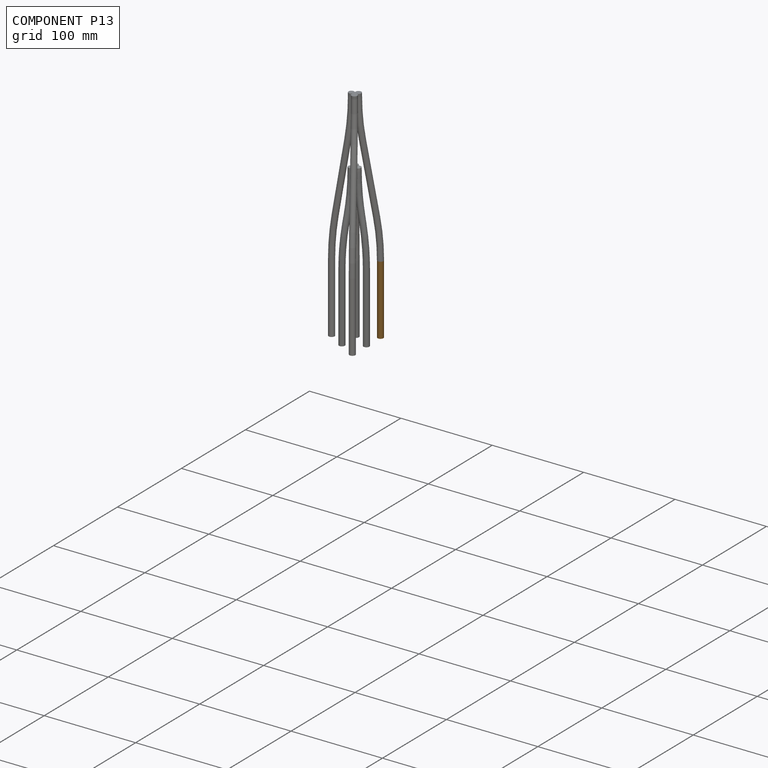
[diagram: component P13 — assembled]
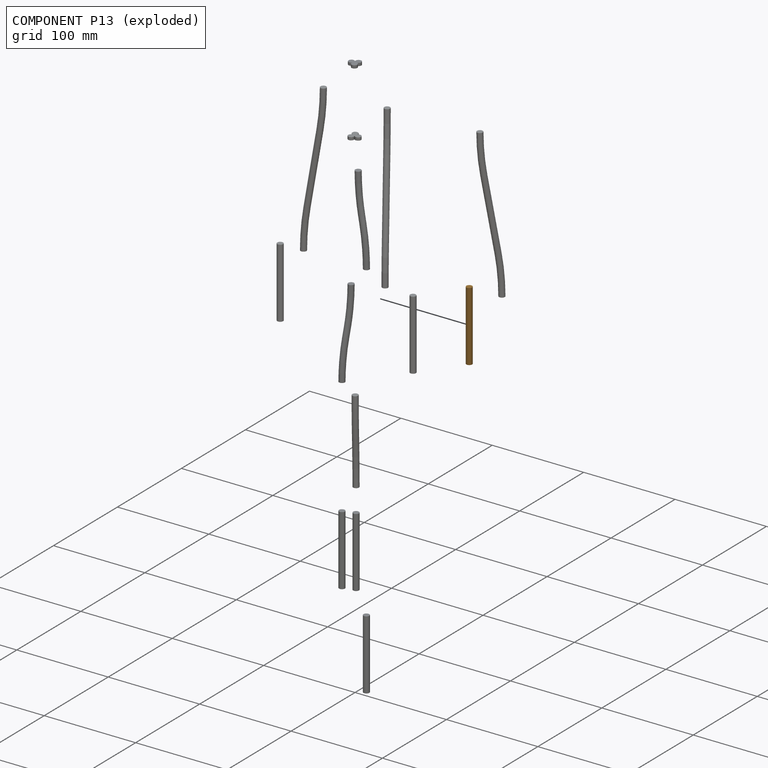
[diagram: component P13 — exploded]
COMPONENT P13 — geometry summary (no construction recipe available for this part):
  bounding box: 76.2 x 6.4 x 6.4 mm
  B-rep topology: 1 solid, 3 faces, 6 edges
  volume: 2413 mm^3 (79% of its bounding box)
  symmetry: 2-fold rotationally symmetric about the x axis; 2-fold rotationally symmetric about the y axis; revolution-symmetric about the z axis through its bounding-box center; mirror-symmetric across its x mid-plane, y mid-plane, z mid-plane
Held by: CYLINDRICAL mate "Cylindrical 3" to P10; PLANAR mate "Planar 1" to P10.
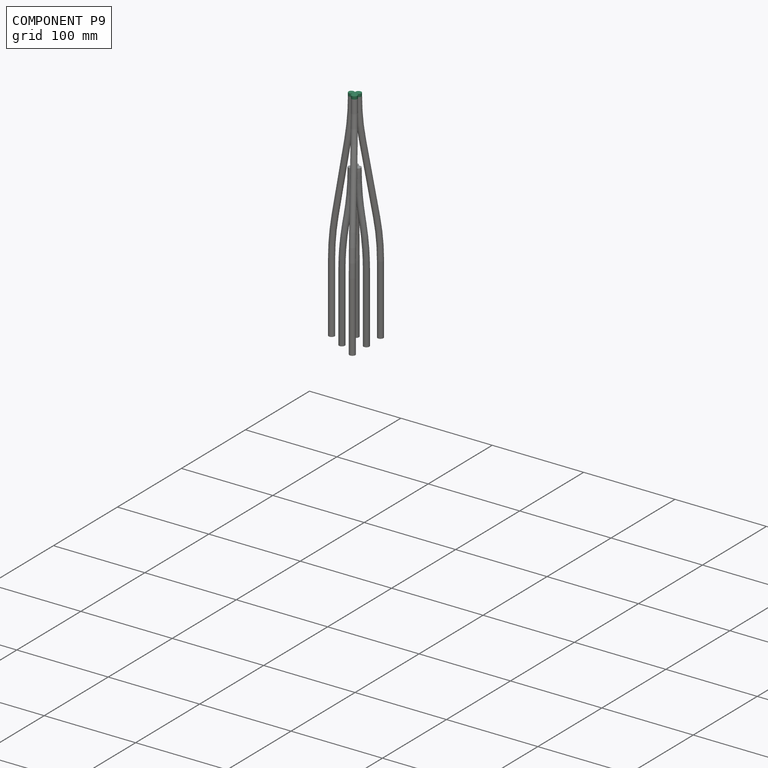
[diagram: component P9 — assembled]
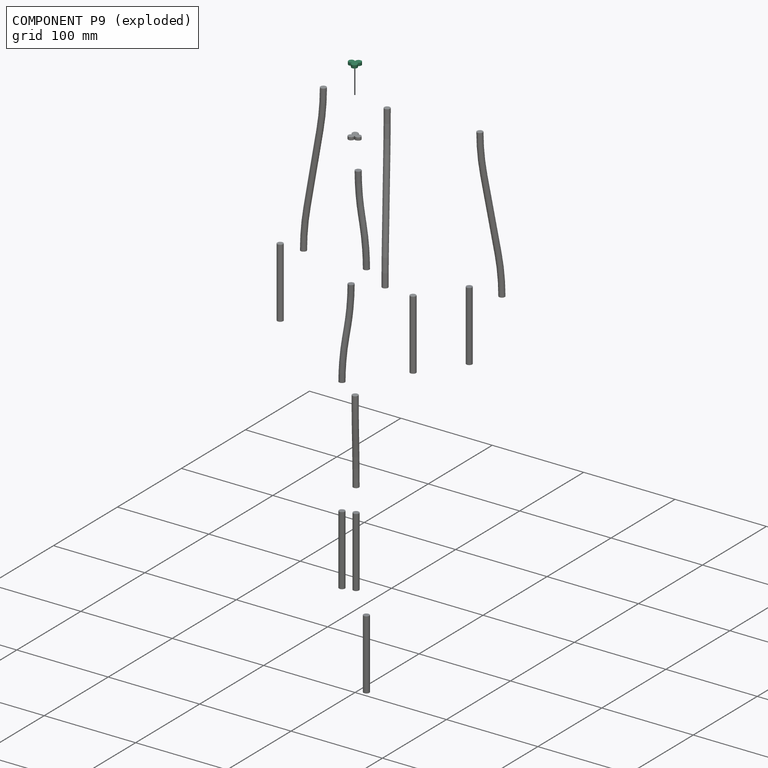
[diagram: component P9 — exploded]
COMPONENT P9 — same part as P0 (CADFS 00508825); its construction recipe is shown at P0.
Held by: CYLINDRICAL mate "Cylindrical 6" to P4; PLANAR mate "Planar 4" to P8; CYLINDRICAL mate "Cylindrical 5" to P10; CYLINDRICAL mate "Cylindrical 4" to P8.
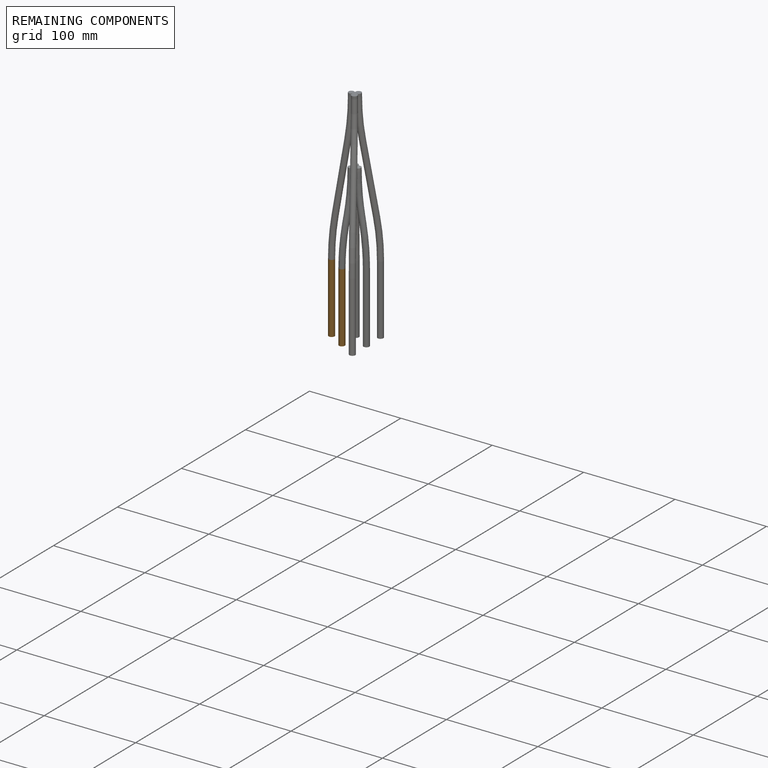
[diagram: remaining components — assembled]
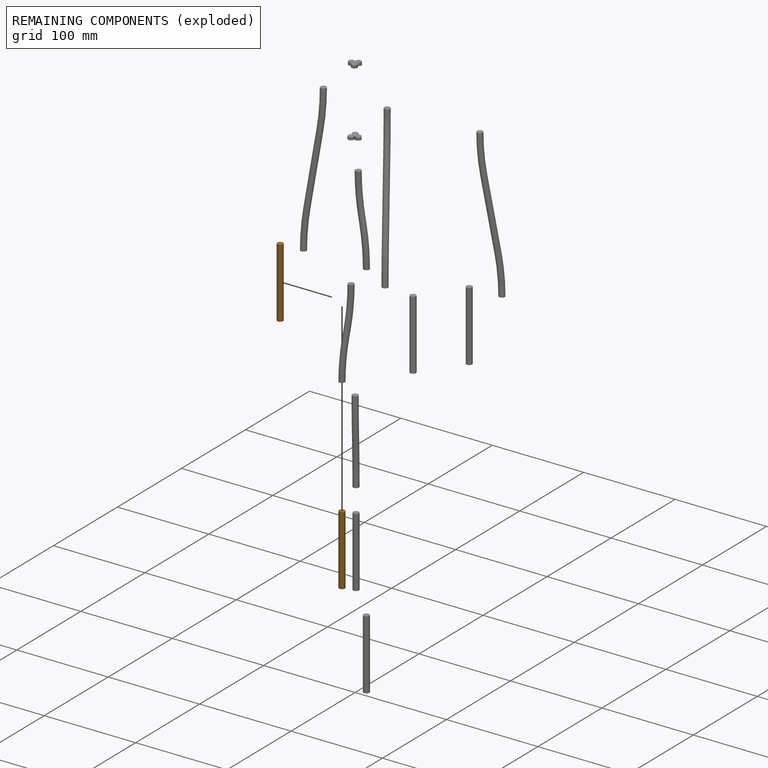
[diagram: remaining components — exploded]
REMAINING COMPONENTS (grouped) — the 2 components below fall outside the per-component tour by the significance rule stated above; both spotlight views highlight the whole group.
  P3: bounding box 76.2 x 6.4 x 6.4 mm, volume 2413 mm^3. Held by: CYLINDRICAL mate "Cylindrical 12" to P1.
  P12: bounding box 76.2 x 6.4 x 6.4 mm, volume 2413 mm^3. Held by: CYLINDRICAL mate "Cylindrical 2" to P4; PLANAR mate "Planar 2" to P4.
PROVENANCE & LICENSES
Assembly (occurrences, transforms, mates, per-part STEP geometry): AutoMate dataset, Zenodo record 7776208, CC0.
Construction recipes: CADFS (HuggingFace VladPyatov/CADFS, CC-BY-4.0, layered over the ABC dataset), FeatureScript reconstruction programs keyed by ABC model id.
Join: ABC meta listings map ABC model id -> Onshape documentId; within a shared document, parts are matched by geometric signature (bounding-box dims + volume at 0.1% relative tolerance, exact B-rep face/solid counts).
Verification: 2 of this assembly's 14 components carry a recipe attachment, and every attachment is mesh-verified: the CADFS STEP and the AutoMate member STEP were compared as meshes in their shared local frame (symmetric sampled-point-to-mesh distance); worst across the 2 attachments: below the mesh-comparison resolution (tessellation chordal tolerance ~0.0265 mm) on a 18 mm part.
Renders: orthographic iso camera (az 35 / el 25); the floor grid conveys scale (grid pitch printed in each image; no ruler). In the exploded view each component is displaced by its stored offset vector: the offsets alone carry the explosion direction (mate normal/axis signs are not orientation cues and do not encode it), and separation distances are assigned per mate-chain, not proportionally to assembly-order depth.
